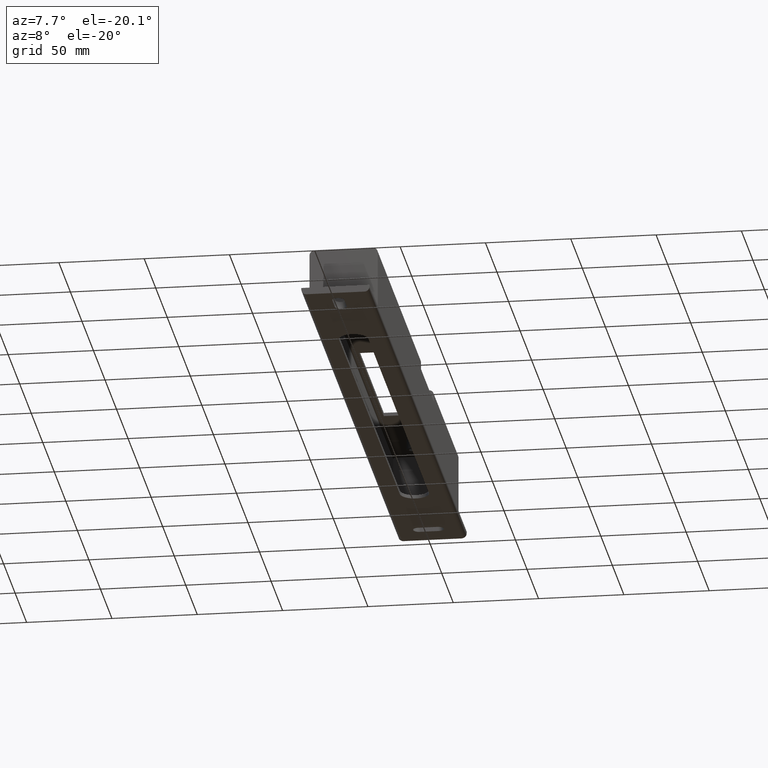
[diagram: clean part render]
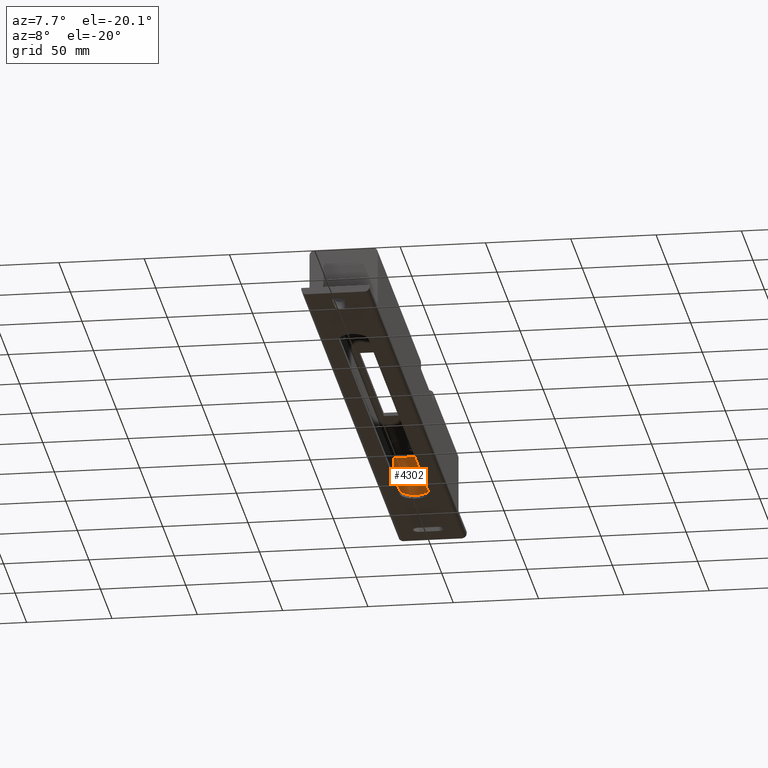
[diagram: same view with one face highlighted and labeled with its STEP entity id]
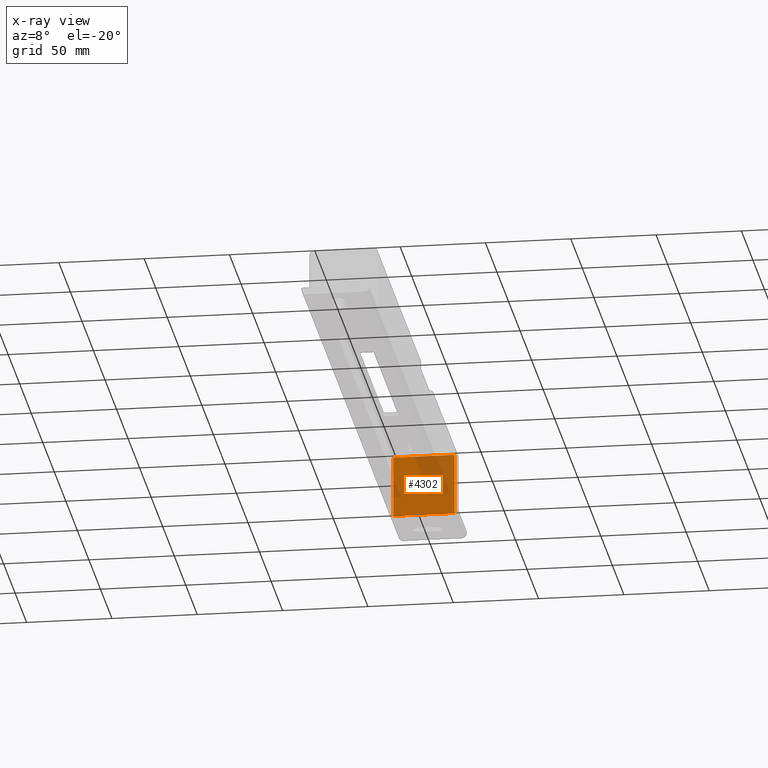
[diagram: x-ray of the same camera — body ghosted, the highlighted face saturated]
A machine part, auxiliary view. The second image highlights one B-rep face of the part: STEP entity #4302.
The next image is the same camera in x-ray: the body ghosted, the highlighted face saturated — about 34% of this face is hidden behind the body in this view.
In plain terms, the highlighted planar face has unit normal (0, 1, 0).
Its self-contained STEP definition (entity closure, byte-faithful):
#493 = CIRCLE ( 'NONE', #2356, 1.000000000000000888 ) ;
#938 = VERTEX_POINT ( 'NONE', #4259 ) ;
#1108 = CARTESIAN_POINT ( 'NONE',  ( 17.00000000000000000, 173.0000000000000000, -16.99999999999999289 ) ) ;
#1288 = EDGE_CURVE ( 'NONE', #4344, #4700, #5941, .T. ) ;
#1324 = DIRECTION ( 'NONE',  ( 8.673617379884035472E-17, -0.000000000000000000, 1.000000000000000000 ) ) ;
#2018 = CARTESIAN_POINT ( 'NONE',  ( 17.99999999999999645, 173.0000000000000000, -16.99999999999999289 ) ) ;
#2023 = CARTESIAN_POINT ( 'NONE',  ( 18.00000000000000000, 173.0000000000000000, 17.00000000000001066 ) ) ;
#2067 = EDGE_CURVE ( 'NONE', #6668, #8930, #8362, .T. ) ;
#2146 = LINE ( 'NONE', #4997, #11741 ) ;
#2206 = EDGE_LOOP ( 'NONE', ( #5275, #12498, #2632, #5154, #4919, #9711, #4841, #6315 ) ) ;
#2231 = DIRECTION ( 'NONE',  ( 0.000000000000000000, 0.000000000000000000, 1.000000000000000000 ) ) ;
#2356 = AXIS2_PLACEMENT_3D ( 'NONE', #1108, #3212, #2231 ) ;
#2632 = ORIENTED_EDGE ( 'NONE', *, *, #1288, .F. ) ;
#2858 = CARTESIAN_POINT ( 'NONE',  ( -17.00000000000000355, 173.0000000000000000, -17.99999999999999645 ) ) ;
#3075 = EDGE_CURVE ( 'NONE', #9099, #13069, #8765, .T. ) ;
#3212 = DIRECTION ( 'NONE',  ( -0.000000000000000000, -1.000000000000000000, -0.000000000000000000 ) ) ;
#3465 = FACE_OUTER_BOUND ( 'NONE', #2206, .T. ) ;
#3691 = CARTESIAN_POINT ( 'NONE',  ( -18.00000000000000355, 173.0000000000000000, -16.99999999999999289 ) ) ;
#3914 = DIRECTION ( 'NONE',  ( -8.673617379884035472E-17, 0.000000000000000000, -1.000000000000000000 ) ) ;
#3960 = CARTESIAN_POINT ( 'NONE',  ( 17.99999999999999645, 173.0000000000000000, -19.99999999999999289 ) ) ;
#4259 = CARTESIAN_POINT ( 'NONE',  ( 17.00000000000000000, 173.0000000000000000, 18.00000000000001421 ) ) ;
#4302 = ADVANCED_FACE ( 'NONE', ( #3465 ), #9960, .F. ) ;
#4312 = CARTESIAN_POINT ( 'NONE',  ( -17.00000000000000355, 173.0000000000000000, -16.99999999999999289 ) ) ;
#4329 = EDGE_CURVE ( 'NONE', #4344, #13069, #493, .T. ) ;
#4344 = VERTEX_POINT ( 'NONE', #14499 ) ;
#4352 = VECTOR ( 'NONE', #5013, 1000.000000000000000 ) ;
#4700 = VERTEX_POINT ( 'NONE', #2858 ) ;
#4841 = ORIENTED_EDGE ( 'NONE', *, *, #10190, .F. ) ;
#4919 = ORIENTED_EDGE ( 'NONE', *, *, #3075, .F. ) ;
#4957 = VERTEX_POINT ( 'NONE', #3691 ) ;
#4997 = CARTESIAN_POINT ( 'NONE',  ( -20.00000000000000000, 173.0000000000000000, 18.00000000000001066 ) ) ;
#5013 = DIRECTION ( 'NONE',  ( -1.000000000000000000, 0.000000000000000000, 0.000000000000000000 ) ) ;
#5154 = ORIENTED_EDGE ( 'NONE', *, *, #4329, .T. ) ;
#5275 = ORIENTED_EDGE ( 'NONE', *, *, #7965, .F. ) ;
#5541 = CIRCLE ( 'NONE', #11164, 1.000000000000000888 ) ;
#5884 = LINE ( 'NONE', #13569, #14062 ) ;
#5941 = LINE ( 'NONE', #10474, #4352 ) ;
#6315 = ORIENTED_EDGE ( 'NONE', *, *, #2067, .T. ) ;
#6668 = VERTEX_POINT ( 'NONE', #9273 ) ;
#7317 = EDGE_CURVE ( 'NONE', #4957, #4700, #5541, .T. ) ;
#7520 = AXIS2_PLACEMENT_3D ( 'NONE', #11593, #9421, #11693 ) ;
#7917 = CARTESIAN_POINT ( 'NONE',  ( -17.00000000000000000, 173.0000000000000000, 17.00000000000000711 ) ) ;
#7965 = EDGE_CURVE ( 'NONE', #4957, #8930, #5884, .T. ) ;
#8362 = CIRCLE ( 'NONE', #11225, 1.000000000000000888 ) ;
#8765 = LINE ( 'NONE', #3960, #13795 ) ;
#8930 = VERTEX_POINT ( 'NONE', #9280 ) ;
#9020 = DIRECTION ( 'NONE',  ( -0.000000000000000000, -1.000000000000000000, -0.000000000000000000 ) ) ;
#9099 = VERTEX_POINT ( 'NONE', #2023 ) ;
#9273 = CARTESIAN_POINT ( 'NONE',  ( -17.00000000000000000, 173.0000000000000000, 18.00000000000001066 ) ) ;
#9280 = CARTESIAN_POINT ( 'NONE',  ( -18.00000000000000000, 173.0000000000000000, 17.00000000000001066 ) ) ;
#9421 = DIRECTION ( 'NONE',  ( -0.000000000000000000, -1.000000000000000000, -0.000000000000000000 ) ) ;
#9711 = ORIENTED_EDGE ( 'NONE', *, *, #14119, .T. ) ;
#9960 = PLANE ( 'NONE',  #10870 ) ;
#10052 = CARTESIAN_POINT ( 'NONE',  ( 17.00000000000000000, 173.0000000000000000, 17.00000000000001066 ) ) ;
#10149 = DIRECTION ( 'NONE',  ( 0.000000000000000000, 0.000000000000000000, 1.000000000000000000 ) ) ;
#10190 = EDGE_CURVE ( 'NONE', #6668, #938, #2146, .T. ) ;
#10474 = CARTESIAN_POINT ( 'NONE',  ( -20.00000000000000355, 173.0000000000000000, -17.99999999999999645 ) ) ;
#10870 = AXIS2_PLACEMENT_3D ( 'NONE', #10052, #13310, #13392 ) ;
#11164 = AXIS2_PLACEMENT_3D ( 'NONE', #4312, #12429, #11362 ) ;
#11225 = AXIS2_PLACEMENT_3D ( 'NONE', #7917, #9020, #10149 ) ;
#11362 = DIRECTION ( 'NONE',  ( 0.000000000000000000, 0.000000000000000000, 1.000000000000000000 ) ) ;
#11593 = CARTESIAN_POINT ( 'NONE',  ( 17.00000000000000000, 173.0000000000000000, 17.00000000000001066 ) ) ;
#11693 = DIRECTION ( 'NONE',  ( 0.000000000000000000, 0.000000000000000000, 1.000000000000000000 ) ) ;
#11741 = VECTOR ( 'NONE', #11795, 1000.000000000000000 ) ;
#11795 = DIRECTION ( 'NONE',  ( 1.000000000000000000, -0.000000000000000000, 0.000000000000000000 ) ) ;
#12429 = DIRECTION ( 'NONE',  ( -0.000000000000000000, -1.000000000000000000, -0.000000000000000000 ) ) ;
#12498 = ORIENTED_EDGE ( 'NONE', *, *, #7317, .T. ) ;
#12560 = CIRCLE ( 'NONE', #7520, 1.000000000000000888 ) ;
#13069 = VERTEX_POINT ( 'NONE', #2018 ) ;
#13310 = DIRECTION ( 'NONE',  ( 0.000000000000000000, 1.000000000000000000, 0.000000000000000000 ) ) ;
#13392 = DIRECTION ( 'NONE',  ( 0.000000000000000000, 0.000000000000000000, -1.000000000000000000 ) ) ;
#13569 = CARTESIAN_POINT ( 'NONE',  ( -18.00000000000000355, 173.0000000000000000, -19.99999999999999289 ) ) ;
#13795 = VECTOR ( 'NONE', #3914, 1000.000000000000000 ) ;
#14062 = VECTOR ( 'NONE', #1324, 1000.000000000000000 ) ;
#14119 = EDGE_CURVE ( 'NONE', #9099, #938, #12560, .T. ) ;
#14499 = CARTESIAN_POINT ( 'NONE',  ( 17.00000000000000000, 173.0000000000000000, -17.99999999999999645 ) ) ;